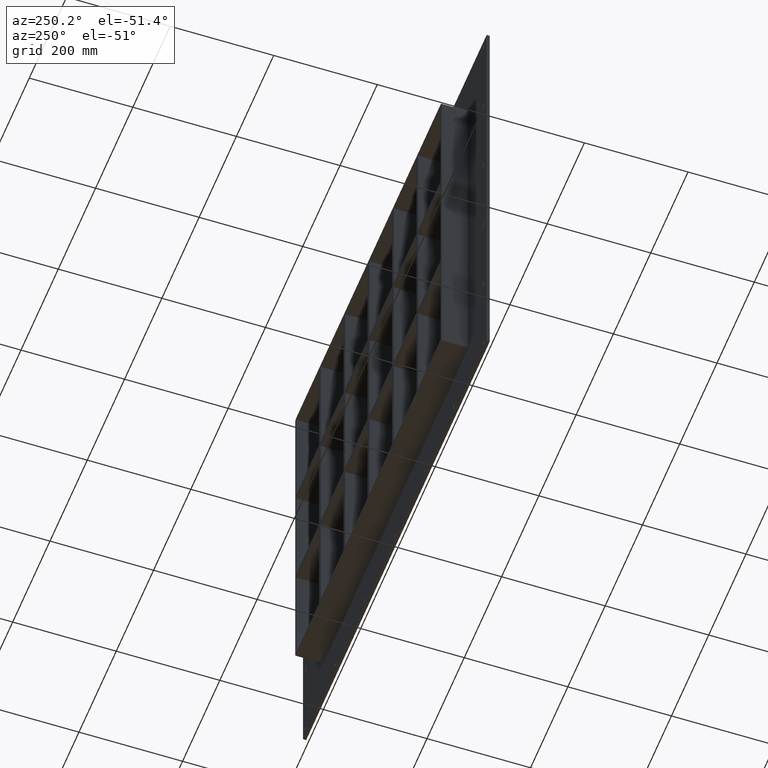
[diagram: clean part render]
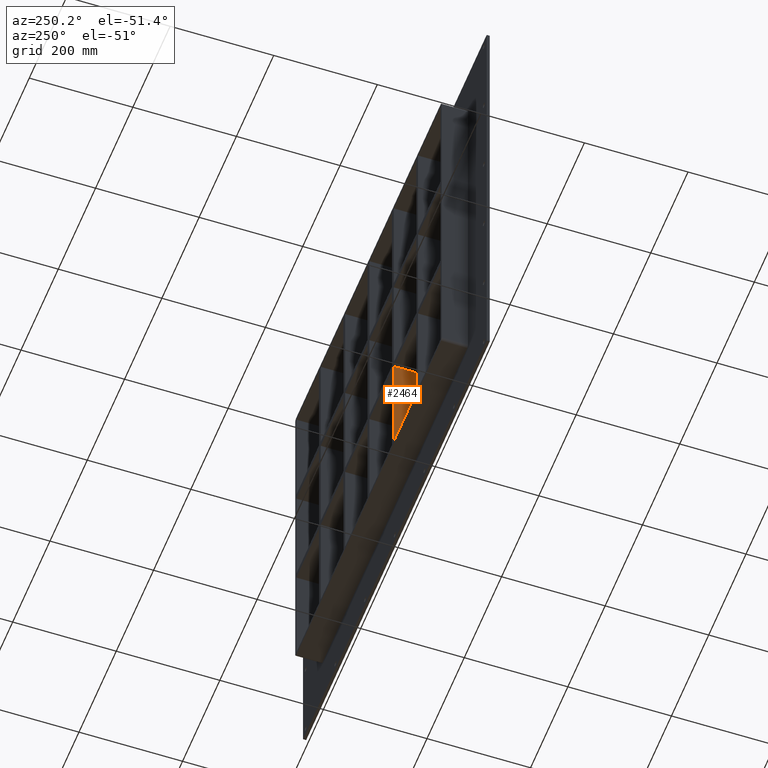
[diagram: same view with one face highlighted and labeled with its STEP entity id]
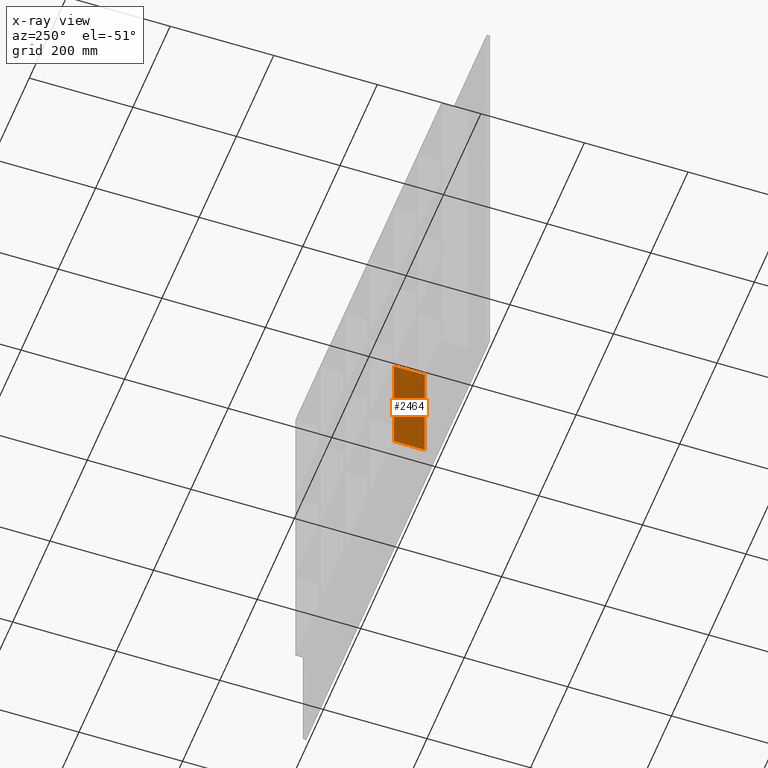
[diagram: x-ray of the same camera — body ghosted, the highlighted face saturated]
A machine part, auxiliary view. The second image highlights one B-rep face of the part: STEP entity #2464.
The next image is the same camera in x-ray: the body ghosted, the highlighted face saturated — about 15% of this face is hidden behind the body in this view.
In plain terms, the highlighted planar face has unit normal (-1, 0, 0).
Its self-contained STEP definition (entity closure, byte-faithful):
#1898=CARTESIAN_POINT('',(-135.50000000000136,57.0,-339.00000000000006));
#1899=VERTEX_POINT('',#1898);
#1900=CARTESIAN_POINT('',(-135.50000000000136,57.0,-121.00000000000932));
#1901=VERTEX_POINT('',#1900);
#1902=CARTESIAN_POINT('',(-135.50000000000136,57.0,-339.00000000000006));
#1903=DIRECTION('',(0.0,0.0,1.0));
#1904=VECTOR('',#1903,217.99999999999073);
#1905=LINE('',#1902,#1904);
#1906=EDGE_CURVE('',#1899,#1901,#1905,.T.);
#2434=CARTESIAN_POINT('',(-135.50000000000136,-3.0,-339.00000000000006));
#2435=DIRECTION('',(-1.0,0.0,0.0));
#2436=DIRECTION('',(0.0,0.0,1.0));
#2437=AXIS2_PLACEMENT_3D('',#2434,#2435,#2436);
#2438=PLANE('',#2437);
#2439=CARTESIAN_POINT('',(-135.50000000000136,-3.0,-121.00000000000932));
#2440=VERTEX_POINT('',#2439);
#2441=CARTESIAN_POINT('',(-135.50000000000139,57.0,-121.00000000000932));
#2442=DIRECTION('',(0.0,-1.0,0.0));
#2443=VECTOR('',#2442,60.0);
#2444=LINE('',#2441,#2443);
#2445=EDGE_CURVE('',#1901,#2440,#2444,.T.);
#2446=ORIENTED_EDGE('',*,*,#2445,.F.);
#2447=ORIENTED_EDGE('',*,*,#1906,.F.);
#2448=CARTESIAN_POINT('',(-135.50000000000136,-3.0,-339.00000000000006));
#2449=VERTEX_POINT('',#2448);
#2450=CARTESIAN_POINT('',(-135.50000000000136,-3.0,-339.00000000000006));
#2451=DIRECTION('',(0.0,1.0,0.0));
#2452=VECTOR('',#2451,60.000000000000007);
#2453=LINE('',#2450,#2452);
#2454=EDGE_CURVE('',#2449,#1899,#2453,.T.);
#2455=ORIENTED_EDGE('',*,*,#2454,.F.);
#2456=CARTESIAN_POINT('',(-135.50000000000136,-3.0,-339.00000000000006));
#2457=DIRECTION('',(0.0,0.0,1.0));
#2458=VECTOR('',#2457,217.99999999999073);
#2459=LINE('',#2456,#2458);
#2460=EDGE_CURVE('',#2449,#2440,#2459,.T.);
#2461=ORIENTED_EDGE('',*,*,#2460,.T.);
#2462=EDGE_LOOP('',(#2446,#2447,#2455,#2461));
#2463=FACE_OUTER_BOUND('',#2462,.T.);
#2464=ADVANCED_FACE('',(#2463),#2438,.T.);